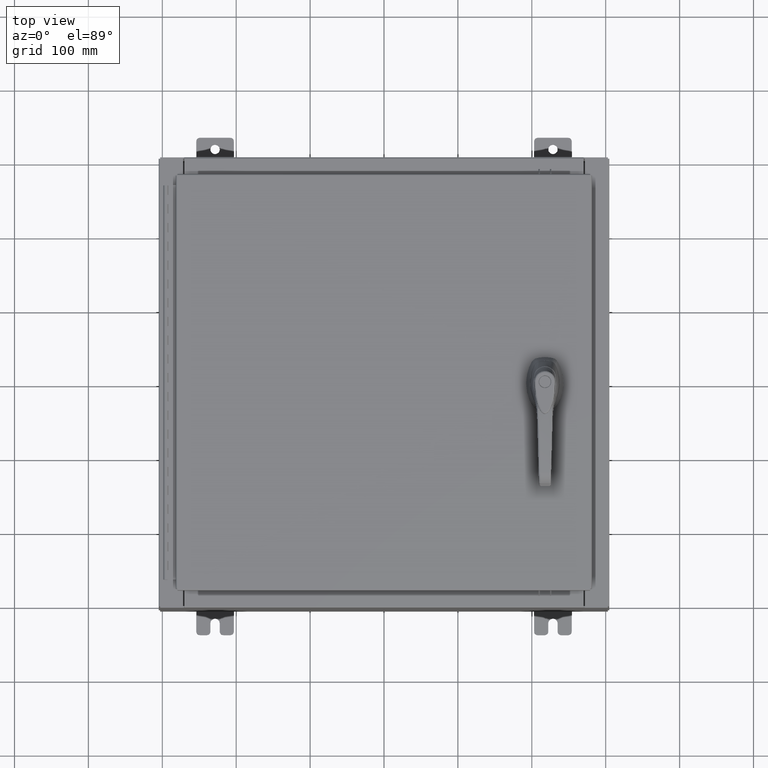
[diagram: clean part render]
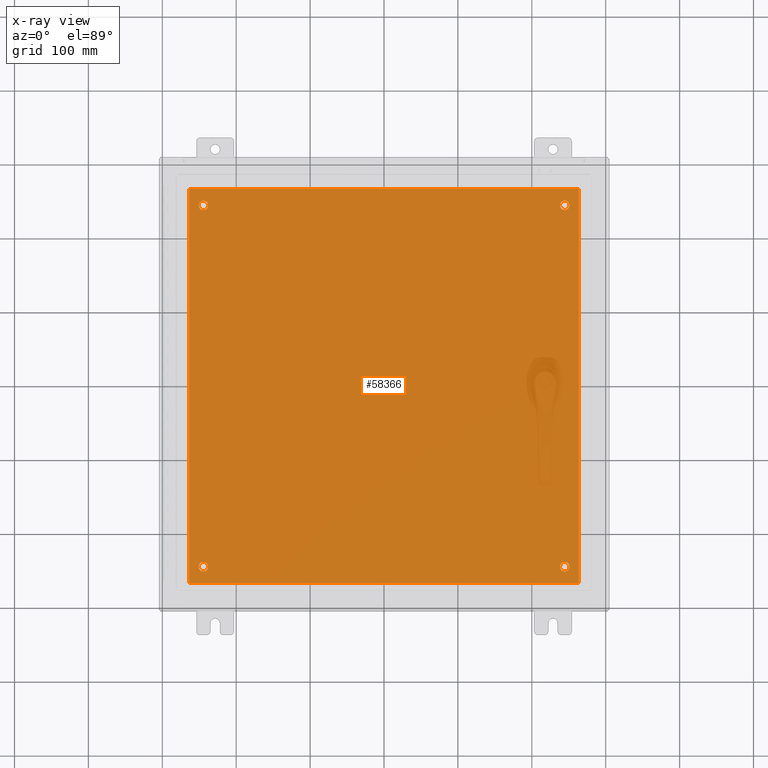
[diagram: x-ray — body ghosted, one internal face saturated and labeled with its STEP entity id]
A machine part, top view, then the same camera in x-ray: the body is ghosted and one INTERNAL B-rep face — a face not visible from any outside direction — is saturated and labeled: STEP entity #58366.
In plain terms, the highlighted planar face has unit normal (0, 0, -1).
Its self-contained STEP definition (entity closure, byte-faithful):
#660 = CARTESIAN_POINT ( 'NONE',  ( 9.375000000000007100, -9.625000000000001800, -0.1039999999999999800 ) ) ;
#747 = CARTESIAN_POINT ( 'NONE',  ( 9.875000000000003600, -9.625000000000001800, -0.1039999999999999800 ) ) ;
#1242 = CARTESIAN_POINT ( 'NONE',  ( -9.625000000000005300, -9.625000000000001800, -0.1039999999999999800 ) ) ;
#1544 = CARTESIAN_POINT ( 'NONE',  ( -9.625000000000005300, -9.625000000000001800, -0.1039999999999999800 ) ) ;
#2776 = EDGE_CURVE ( 'NONE', #71643, #54278, #6361, .T. ) ;
#5258 = DIRECTION ( 'NONE',  ( -1.000000000000000000, 0.0000000000000000000, 0.0000000000000000000 ) ) ;
#5759 = FACE_OUTER_BOUND ( 'NONE', #25490, .T. ) ;
#6361 = CIRCLE ( 'NONE', #66964, 0.2499999999999987000 ) ;
#6476 = EDGE_CURVE ( 'NONE', #110217, #52109, #89572, .T. ) ;
#9565 = CARTESIAN_POINT ( 'NONE',  ( -9.625000000000005300, 9.625000000000001800, -0.1039999999999999800 ) ) ;
#10012 = ORIENTED_EDGE ( 'NONE', *, *, #52085, .F. ) ;
#10049 = DIRECTION ( 'NONE',  ( -1.000000000000000000, 0.0000000000000000000, 0.0000000000000000000 ) ) ;
#10339 = ORIENTED_EDGE ( 'NONE', *, *, #2776, .T. ) ;
#10350 = DIRECTION ( 'NONE',  ( -1.000000000000000000, 0.0000000000000000000, 0.0000000000000000000 ) ) ;
#12118 = EDGE_CURVE ( 'NONE', #109421, #16896, #93038, .T. ) ;
#13053 = EDGE_CURVE ( 'NONE', #57487, #60632, #43547, .T. ) ;
#13299 = CARTESIAN_POINT ( 'NONE',  ( -9.625000000000005300, 9.625000000000001800, -0.1039999999999999800 ) ) ;
#13422 = DIRECTION ( 'NONE',  ( -0.0000000000000000000, -0.0000000000000000000, 1.000000000000000000 ) ) ;
#13720 = EDGE_CURVE ( 'NONE', #16896, #109421, #31843, .T. ) ;
#13774 = ORIENTED_EDGE ( 'NONE', *, *, #13053, .T. ) ;
#14052 = ORIENTED_EDGE ( 'NONE', *, *, #6476, .T. ) ;
#14293 = CARTESIAN_POINT ( 'NONE',  ( -9.875000000000005300, 9.625000000000001800, -0.1039999999999999800 ) ) ;
#15670 = CARTESIAN_POINT ( 'NONE',  ( 10.38300000000000100, 10.50000000000000200, -0.1039999999999999800 ) ) ;
#16896 = VERTEX_POINT ( 'NONE', #56025 ) ;
#17185 = EDGE_LOOP ( 'NONE', ( #89192, #109159 ) ) ;
#18308 = DIRECTION ( 'NONE',  ( -1.000000000000000000, 0.0000000000000000000, 0.0000000000000000000 ) ) ;
#18630 = VERTEX_POINT ( 'NONE', #66369 ) ;
#19893 = DIRECTION ( 'NONE',  ( 0.0000000000000000000, 1.000000000000000000, 0.0000000000000000000 ) ) ;
#19949 = AXIS2_PLACEMENT_3D ( 'NONE', #94091, #41582, #102911 ) ;
#22020 = DIRECTION ( 'NONE',  ( -1.000000000000000000, 0.0000000000000000000, 0.0000000000000000000 ) ) ;
#22650 = LINE ( 'NONE', #45233, #89823 ) ;
#24895 = CIRCLE ( 'NONE', #111592, 0.2499999999999976100 ) ;
#25490 = EDGE_LOOP ( 'NONE', ( #39634, #10012, #78164, #94581 ) ) ;
#25625 = PLANE ( 'NONE',  #26527 ) ;
#26527 = AXIS2_PLACEMENT_3D ( 'NONE', #42845, #34390, #95707 ) ;
#26813 = EDGE_LOOP ( 'NONE', ( #27817, #14052 ) ) ;
#26814 = CIRCLE ( 'NONE', #90496, 0.2499999999999987000 ) ;
#27037 = LINE ( 'NONE', #53258, #81866 ) ;
#27817 = ORIENTED_EDGE ( 'NONE', *, *, #77924, .T. ) ;
#29296 = VECTOR ( 'NONE', #19893, 39.37007874015748100 ) ;
#30811 = DIRECTION ( 'NONE',  ( -0.0000000000000000000, -0.0000000000000000000, 1.000000000000000000 ) ) ;
#30828 = VERTEX_POINT ( 'NONE', #15670 ) ;
#31721 = FACE_BOUND ( 'NONE', #98616, .T. ) ;
#31843 = CIRCLE ( 'NONE', #19949, 0.2499999999999976100 ) ;
#33692 = CARTESIAN_POINT ( 'NONE',  ( 9.375000000000007100, 9.625000000000001800, -0.1039999999999999800 ) ) ;
#34390 = DIRECTION ( 'NONE',  ( 0.0000000000000000000, 0.0000000000000000000, -1.000000000000000000 ) ) ;
#37747 = VERTEX_POINT ( 'NONE', #39188 ) ;
#39188 = CARTESIAN_POINT ( 'NONE',  ( -10.38299999999999900, 10.50000000000000400, -0.1040000000000031300 ) ) ;
#39634 = ORIENTED_EDGE ( 'NONE', *, *, #67257, .F. ) ;
#41582 = DIRECTION ( 'NONE',  ( -0.0000000000000000000, -0.0000000000000000000, 1.000000000000000000 ) ) ;
#41984 = VERTEX_POINT ( 'NONE', #64037 ) ;
#42845 = CARTESIAN_POINT ( 'NONE',  ( 0.0000000000000000000, 0.0000000000000000000, -0.1039999999999999800 ) ) ;
#43547 = CIRCLE ( 'NONE', #94823, 0.2499999999999987000 ) ;
#45233 = CARTESIAN_POINT ( 'NONE',  ( -10.38299999999999900, 10.50000000000000400, -0.1040000000000031300 ) ) ;
#45605 = DIRECTION ( 'NONE',  ( 0.0000000000000000000, -1.000000000000000000, 0.0000000000000000000 ) ) ;
#49565 = EDGE_CURVE ( 'NONE', #60632, #57487, #90343, .T. ) ;
#52085 = EDGE_CURVE ( 'NONE', #37747, #18630, #22650, .T. ) ;
#52109 = VERTEX_POINT ( 'NONE', #747 ) ;
#52256 = FACE_BOUND ( 'NONE', #95733, .T. ) ;
#53258 = CARTESIAN_POINT ( 'NONE',  ( -10.50000000000000200, -10.50000000000000000, -0.1039999999999999800 ) ) ;
#54278 = VERTEX_POINT ( 'NONE', #71470 ) ;
#56025 = CARTESIAN_POINT ( 'NONE',  ( 9.875000000000003600, 9.625000000000001800, -0.1039999999999999800 ) ) ;
#57487 = VERTEX_POINT ( 'NONE', #85918 ) ;
#57650 = DIRECTION ( 'NONE',  ( -0.0000000000000000000, -0.0000000000000000000, 1.000000000000000000 ) ) ;
#58366 = ADVANCED_FACE ( 'NONE', ( #52256, #78299, #75568, #31721, #5759 ), #25625, .T. ) ;
#59943 = DIRECTION ( 'NONE',  ( -1.000000000000000000, -0.0000000000000000000, -0.0000000000000000000 ) ) ;
#60313 = CARTESIAN_POINT ( 'NONE',  ( -10.50000000000000000, 10.50000000000000200, -0.1039999999999999800 ) ) ;
#60632 = VERTEX_POINT ( 'NONE', #100398 ) ;
#62445 = DIRECTION ( 'NONE',  ( -0.0000000000000000000, -0.0000000000000000000, 1.000000000000000000 ) ) ;
#62709 = AXIS2_PLACEMENT_3D ( 'NONE', #1544, #62751, #10350 ) ;
#62751 = DIRECTION ( 'NONE',  ( -0.0000000000000000000, -0.0000000000000000000, 1.000000000000000000 ) ) ;
#63553 = CARTESIAN_POINT ( 'NONE',  ( 10.38300000000000100, -10.50000000000000200, -0.1040000000000009100 ) ) ;
#64037 = CARTESIAN_POINT ( 'NONE',  ( 10.38299999999999900, -10.50000000000000000, -0.1039999999999999800 ) ) ;
#65851 = CARTESIAN_POINT ( 'NONE',  ( 9.625000000000005300, -9.625000000000001800, -0.1039999999999999800 ) ) ;
#66369 = CARTESIAN_POINT ( 'NONE',  ( -10.38299999999999900, -10.50000000000000000, -0.1040000000000031300 ) ) ;
#66964 = AXIS2_PLACEMENT_3D ( 'NONE', #13299, #74485, #22020 ) ;
#67257 = EDGE_CURVE ( 'NONE', #18630, #41984, #27037, .T. ) ;
#69034 = EDGE_CURVE ( 'NONE', #54278, #71643, #26814, .T. ) ;
#70792 = DIRECTION ( 'NONE',  ( -0.0000000000000000000, -0.0000000000000000000, 1.000000000000000000 ) ) ;
#71470 = CARTESIAN_POINT ( 'NONE',  ( -9.375000000000005300, 9.625000000000001800, -0.1039999999999999800 ) ) ;
#71643 = VERTEX_POINT ( 'NONE', #14293 ) ;
#74485 = DIRECTION ( 'NONE',  ( -0.0000000000000000000, -0.0000000000000000000, 1.000000000000000000 ) ) ;
#74608 = DIRECTION ( 'NONE',  ( -1.000000000000000000, 0.0000000000000000000, 0.0000000000000000000 ) ) ;
#75568 = FACE_BOUND ( 'NONE', #17185, .T. ) ;
#77767 = VECTOR ( 'NONE', #59943, 39.37007874015748100 ) ;
#77924 = EDGE_CURVE ( 'NONE', #52109, #110217, #24895, .T. ) ;
#78164 = ORIENTED_EDGE ( 'NONE', *, *, #83951, .F. ) ;
#78299 = FACE_BOUND ( 'NONE', #26813, .T. ) ;
#80497 = LINE ( 'NONE', #60313, #77767 ) ;
#81537 = AXIS2_PLACEMENT_3D ( 'NONE', #110223, #57650, #5258 ) ;
#81866 = VECTOR ( 'NONE', #105423, 39.37007874015748100 ) ;
#83300 = CARTESIAN_POINT ( 'NONE',  ( 9.625000000000005300, -9.625000000000001800, -0.1039999999999999800 ) ) ;
#83951 = EDGE_CURVE ( 'NONE', #30828, #37747, #80497, .T. ) ;
#84643 = ORIENTED_EDGE ( 'NONE', *, *, #69034, .T. ) ;
#85918 = CARTESIAN_POINT ( 'NONE',  ( -9.875000000000005300, -9.625000000000001800, -0.1039999999999999800 ) ) ;
#88027 = EDGE_CURVE ( 'NONE', #41984, #30828, #102017, .T. ) ;
#89192 = ORIENTED_EDGE ( 'NONE', *, *, #13720, .T. ) ;
#89572 = CIRCLE ( 'NONE', #110452, 0.2499999999999976100 ) ;
#89823 = VECTOR ( 'NONE', #45605, 39.37007874015748100 ) ;
#90343 = CIRCLE ( 'NONE', #62709, 0.2499999999999987000 ) ;
#90496 = AXIS2_PLACEMENT_3D ( 'NONE', #9565, #70792, #18308 ) ;
#92122 = DIRECTION ( 'NONE',  ( -1.000000000000000000, 0.0000000000000000000, 0.0000000000000000000 ) ) ;
#93038 = CIRCLE ( 'NONE', #81537, 0.2499999999999976100 ) ;
#94091 = CARTESIAN_POINT ( 'NONE',  ( 9.625000000000005300, 9.625000000000001800, -0.1039999999999999800 ) ) ;
#94581 = ORIENTED_EDGE ( 'NONE', *, *, #88027, .F. ) ;
#94823 = AXIS2_PLACEMENT_3D ( 'NONE', #1242, #62445, #10049 ) ;
#95707 = DIRECTION ( 'NONE',  ( -1.000000000000000000, 0.0000000000000000000, -0.0000000000000000000 ) ) ;
#95733 = EDGE_LOOP ( 'NONE', ( #104898, #13774 ) ) ;
#98616 = EDGE_LOOP ( 'NONE', ( #84643, #10339 ) ) ;
#100398 = CARTESIAN_POINT ( 'NONE',  ( -9.375000000000005300, -9.625000000000001800, -0.1039999999999999800 ) ) ;
#102017 = LINE ( 'NONE', #63553, #29296 ) ;
#102911 = DIRECTION ( 'NONE',  ( -1.000000000000000000, 0.0000000000000000000, 0.0000000000000000000 ) ) ;
#104898 = ORIENTED_EDGE ( 'NONE', *, *, #49565, .T. ) ;
#105423 = DIRECTION ( 'NONE',  ( 1.000000000000000000, 0.0000000000000000000, 0.0000000000000000000 ) ) ;
#109159 = ORIENTED_EDGE ( 'NONE', *, *, #12118, .T. ) ;
#109421 = VERTEX_POINT ( 'NONE', #33692 ) ;
#110217 = VERTEX_POINT ( 'NONE', #660 ) ;
#110223 = CARTESIAN_POINT ( 'NONE',  ( 9.625000000000005300, 9.625000000000001800, -0.1039999999999999800 ) ) ;
#110452 = AXIS2_PLACEMENT_3D ( 'NONE', #65851, #13422, #74608 ) ;
#111592 = AXIS2_PLACEMENT_3D ( 'NONE', #83300, #30811, #92122 ) ;